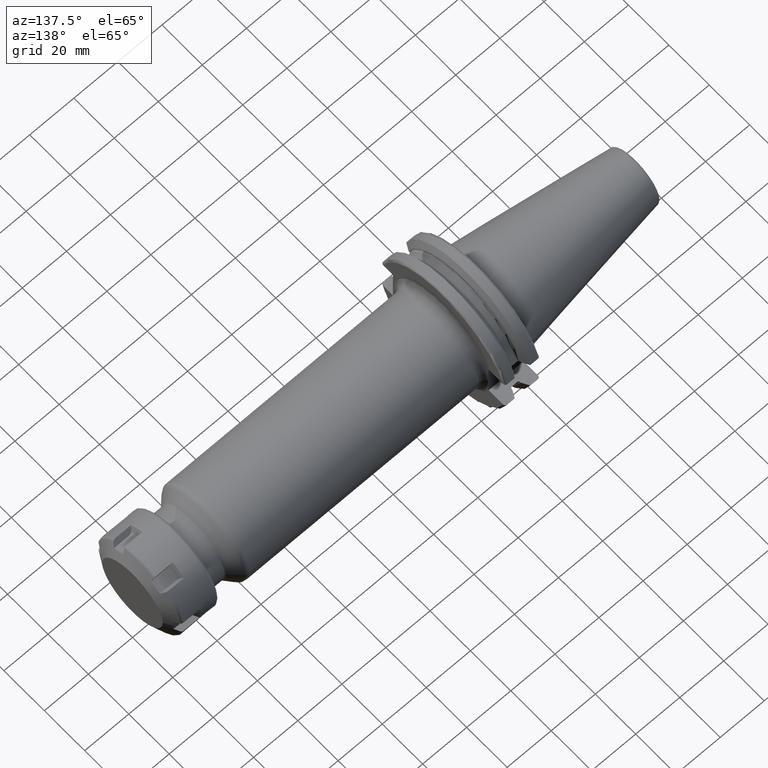
[diagram: clean part render]
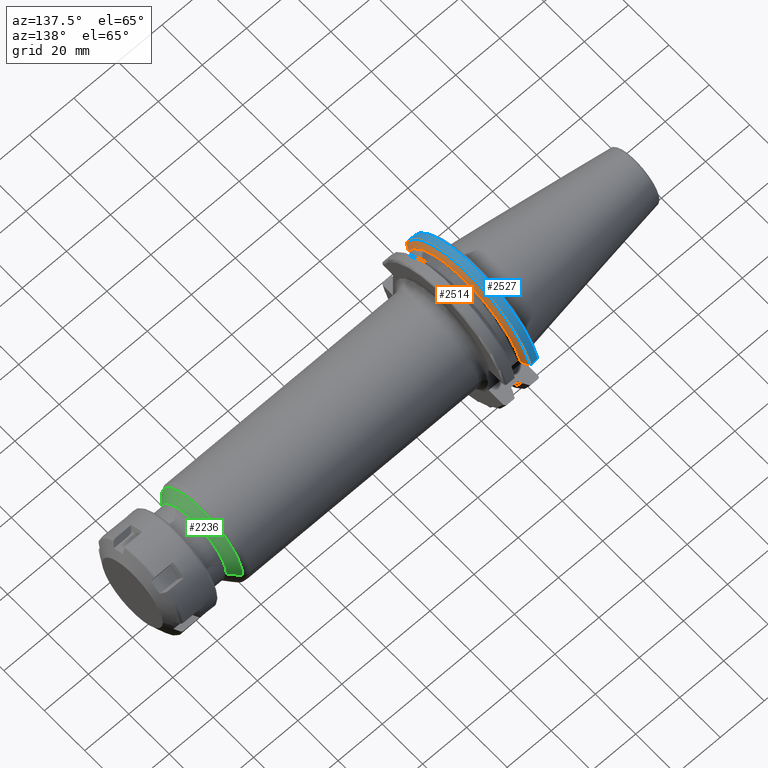
[diagram: same view with three faces highlighted in distinct colors, each labeled with its STEP entity id]
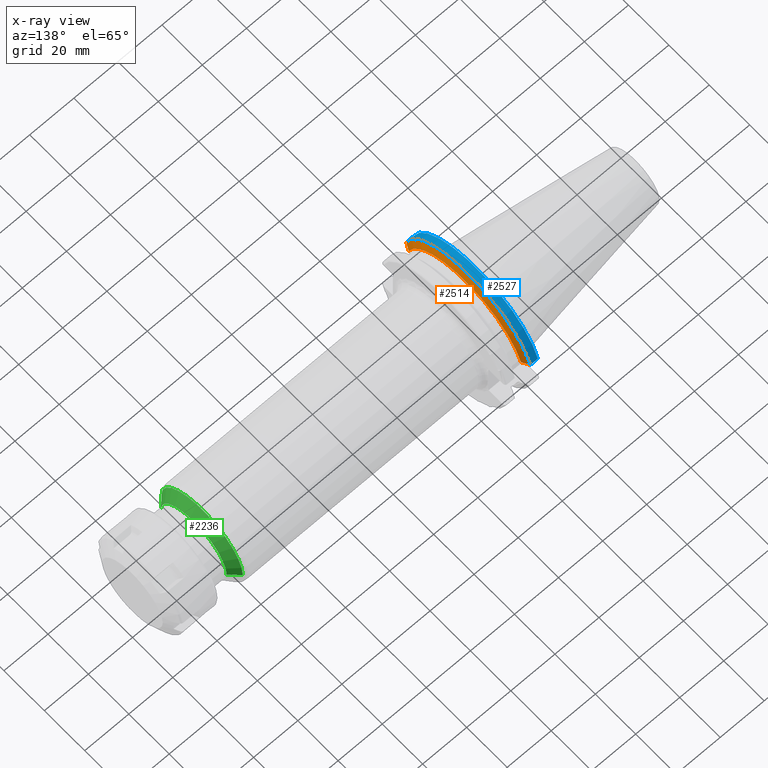
[diagram: x-ray of the same camera — body ghosted, the three highlighted faces saturated]
A machine part, auxiliary view with three faces highlighted in distinct colors.
The next image is the same camera in x-ray (body ghosted, the three faces saturated) — at least one of them is partly hidden behind the body in this view.
Their STEP definitions:

[orange] entity #2514 — the highlighted conical surface has half-angle 60 deg.
#711=CARTESIAN_POINT('',(9.2625E0,0.E0,0.E0));
#712=DIRECTION('',(1.E0,0.E0,0.E0));
#713=DIRECTION('',(0.E0,9.600957415706E-1,2.796715341576E-1));
#714=AXIS2_PLACEMENT_3D('',#711,#712,#713);
#809=CARTESIAN_POINT('',(7.645946479578E0,3.071231684927E1,8.1E0));
#810=CARTESIAN_POINT('',(7.831754864835E0,3.037948258059E1,8.1E0));
#811=CARTESIAN_POINT('',(8.199252814970E0,2.972048825911E1,8.1E0));
#812=CARTESIAN_POINT('',(8.738047920141E0,2.875212438619E1,8.1E0));
#813=CARTESIAN_POINT('',(9.089058006747E0,2.811971443922E1,8.1E0));
#814=CARTESIAN_POINT('',(9.2625E0,2.780681820245E1,8.1E0));
#816=CARTESIAN_POINT('',(9.2625E0,-2.780681820245E1,8.1E0));
#817=CARTESIAN_POINT('',(9.089138247115E0,-2.811956968242E1,8.1E0));
#818=CARTESIAN_POINT('',(8.738235514848E0,-2.875178670793E1,8.1E0));
#819=CARTESIAN_POINT('',(8.199445066245E0,-2.972014324708E1,8.1E0));
#820=CARTESIAN_POINT('',(7.831837395590E0,-3.037933474515E1,8.1E0));
#821=CARTESIAN_POINT('',(7.645946479578E0,-3.071231684927E1,8.1E0));
#827=CARTESIAN_POINT('',(7.645946479578E0,0.E0,0.E0));
#828=DIRECTION('',(1.E0,0.E0,0.E0));
#829=DIRECTION('',(0.E0,9.669363825036E-1,2.550177095632E-1));
#830=AXIS2_PLACEMENT_3D('',#827,#828,#829);
#1360=CARTESIAN_POINT('',(9.2625E0,2.780681820245E1,8.1E0));
#1362=VERTEX_POINT('',#1360);
#1372=CARTESIAN_POINT('',(9.2625E0,-2.780681820245E1,8.1E0));
#1374=VERTEX_POINT('',#1372);
#1414=VERTEX_POINT('',#809);
#1415=VERTEX_POINT('',#821);
#2502=CARTESIAN_POINT('',(8.454223239789E0,0.E0,0.E0));
#2503=DIRECTION('',(-1.E0,0.E0,0.E0));
#2504=DIRECTION('',(0.E0,1.E0,0.E0));
#2505=AXIS2_PLACEMENT_3D('',#2502,#2503,#2504);
#2506=CONICAL_SURFACE('',#2505,3.036252358474E1,6.E1);
#2507=ORIENTED_EDGE('',*,*,#2127,.T.);
#2508=ORIENTED_EDGE('',*,*,#2430,.T.);
#2509=ORIENTED_EDGE('',*,*,#2416,.T.);
#2511=ORIENTED_EDGE('',*,*,#2510,.F.);
#2512=EDGE_LOOP('',(#2507,#2508,#2509,#2511));
#2513=FACE_OUTER_BOUND('',#2512,.F.);
#2514=ADVANCED_FACE('',(#2513),#2506,.T.);
#715=CIRCLE('',#714,2.896254716948E1);
#815=B_SPLINE_CURVE_WITH_KNOTS('',3,(#809,#810,#811,#812,#813,#814),
.UNSPECIFIED.,.F.,.F.,(4,1,1,4),(0.E0,3.333333333333E-1,6.666666666667E-1,1.E0),
.UNSPECIFIED.);
#822=B_SPLINE_CURVE_WITH_KNOTS('',3,(#816,#817,#818,#819,#820,#821),
.UNSPECIFIED.,.F.,.F.,(4,1,1,4),(0.E0,3.333333333333E-1,6.666666666667E-1,1.E0),
.UNSPECIFIED.);
#831=CIRCLE('',#830,3.17625E1);
#2127=EDGE_CURVE('',#1414,#1362,#815,.T.);
#2416=EDGE_CURVE('',#1374,#1415,#822,.T.);
#2430=EDGE_CURVE('',#1362,#1374,#715,.T.);
#2510=EDGE_CURVE('',#1414,#1415,#831,.T.);

[blue] entity #2527 — the highlighted cylindrical surface (partial cylindrical patch) has radius 31.7625 mm, axis along (1, 0, 0).
#809=CARTESIAN_POINT('',(7.645946479578E0,3.071231684927E1,8.1E0));
#821=CARTESIAN_POINT('',(7.645946479578E0,-3.071231684927E1,8.1E0));
#823=DIRECTION('',(1.E0,0.E0,0.E0));
#824=VECTOR('',#823,3.445946479578E0);
#825=CARTESIAN_POINT('',(4.2E0,3.071231684927E1,8.1E0));
#826=LINE('',#825,#824);
#827=CARTESIAN_POINT('',(7.645946479578E0,0.E0,0.E0));
#828=DIRECTION('',(1.E0,0.E0,0.E0));
#829=DIRECTION('',(0.E0,9.669363825036E-1,2.550177095632E-1));
#830=AXIS2_PLACEMENT_3D('',#827,#828,#829);
#832=DIRECTION('',(1.E0,0.E0,0.E0));
#833=VECTOR('',#832,3.445946479578E0);
#834=CARTESIAN_POINT('',(4.2E0,-3.071231684927E1,8.1E0));
#835=LINE('',#834,#833);
#865=CARTESIAN_POINT('',(4.2E0,0.E0,0.E0));
#866=DIRECTION('',(1.E0,0.E0,0.E0));
#867=DIRECTION('',(0.E0,9.669363825036E-1,2.550177095632E-1));
#868=AXIS2_PLACEMENT_3D('',#865,#866,#867);
#1414=VERTEX_POINT('',#809);
#1415=VERTEX_POINT('',#821);
#1434=CARTESIAN_POINT('',(4.2E0,3.071231684927E1,8.1E0));
#1435=VERTEX_POINT('',#1434);
#1438=CARTESIAN_POINT('',(4.2E0,-3.071231684927E1,8.1E0));
#1439=VERTEX_POINT('',#1438);
#2515=CARTESIAN_POINT('',(-7.2615E1,0.E0,0.E0));
#2516=DIRECTION('',(1.E0,0.E0,0.E0));
#2517=DIRECTION('',(0.E0,-1.E0,0.E0));
#2518=AXIS2_PLACEMENT_3D('',#2515,#2516,#2517);
#2519=CYLINDRICAL_SURFACE('',#2518,3.17625E1);
#2520=ORIENTED_EDGE('',*,*,#2129,.T.);
#2521=ORIENTED_EDGE('',*,*,#2510,.T.);
#2522=ORIENTED_EDGE('',*,*,#2414,.F.);
#2524=ORIENTED_EDGE('',*,*,#2523,.F.);
#2525=EDGE_LOOP('',(#2520,#2521,#2522,#2524));
#2526=FACE_OUTER_BOUND('',#2525,.F.);
#2527=ADVANCED_FACE('',(#2526),#2519,.T.);
#831=CIRCLE('',#830,3.17625E1);
#869=CIRCLE('',#868,3.17625E1);
#2129=EDGE_CURVE('',#1435,#1414,#826,.T.);
#2414=EDGE_CURVE('',#1439,#1415,#835,.T.);
#2510=EDGE_CURVE('',#1414,#1415,#831,.T.);
#2523=EDGE_CURVE('',#1435,#1439,#869,.T.);

[green] entity #2236 — the highlighted conical surface has half-angle 45 deg.
#565=DIRECTION('',(-7.071067811865E-1,-7.071067811865E-1,-2.817150241686E-12));
#566=VECTOR('',#565,5.414213562372E0);
#567=CARTESIAN_POINT('',(1.322071067812E2,-1.629289321881E1,
8.982698945550E-13));
#568=LINE('',#567,#566);
#574=DIRECTION('',(-7.071067811865E-1,7.071067811865E-1,2.816857806715E-12));
#575=VECTOR('',#574,5.414213562372E0);
#576=CARTESIAN_POINT('',(1.322071067812E2,1.629289321881E1,
-8.988728039517E-13));
#577=LINE('',#576,#575);
#578=CARTESIAN_POINT('',(1.283786796564E2,0.E0,0.E0));
#579=DIRECTION('',(-1.E0,0.E0,0.E0));
#580=DIRECTION('',(0.E0,-1.E0,0.E0));
#581=AXIS2_PLACEMENT_3D('',#578,#579,#580);
#583=CARTESIAN_POINT('',(1.322071067812E2,0.E0,0.E0));
#584=DIRECTION('',(1.E0,0.E0,0.E0));
#585=DIRECTION('',(0.E0,1.E0,0.E0));
#586=AXIS2_PLACEMENT_3D('',#583,#584,#585);
#1515=CARTESIAN_POINT('',(1.283786796564E2,2.012132034356E1,0.E0));
#1516=CARTESIAN_POINT('',(1.283786796564E2,-2.012132034356E1,0.E0));
#1517=VERTEX_POINT('',#1515);
#1518=VERTEX_POINT('',#1516);
#1535=CARTESIAN_POINT('',(1.322071067812E2,-1.629289321881E1,0.E0));
#1536=CARTESIAN_POINT('',(1.322071067812E2,1.629289321881E1,0.E0));
#1537=VERTEX_POINT('',#1535);
#1538=VERTEX_POINT('',#1536);
#2224=CARTESIAN_POINT('',(1.302928932188E2,0.E0,0.E0));
#2225=DIRECTION('',(-1.E0,0.E0,0.E0));
#2226=DIRECTION('',(0.E0,1.E0,0.E0));
#2227=AXIS2_PLACEMENT_3D('',#2224,#2225,#2226);
#2228=CONICAL_SURFACE('',#2227,1.820710678119E1,4.5E1);
#2229=ORIENTED_EDGE('',*,*,#2176,.T.);
#2230=ORIENTED_EDGE('',*,*,#2219,.F.);
#2232=ORIENTED_EDGE('',*,*,#2231,.T.);
#2233=ORIENTED_EDGE('',*,*,#2215,.T.);
#2234=EDGE_LOOP('',(#2229,#2230,#2232,#2233));
#2235=FACE_OUTER_BOUND('',#2234,.F.);
#2236=ADVANCED_FACE('',(#2235),#2228,.T.);
#582=CIRCLE('',#581,2.012132034356E1);
#587=CIRCLE('',#586,1.629289321881E1);
#2176=EDGE_CURVE('',#1518,#1517,#582,.T.);
#2215=EDGE_CURVE('',#1537,#1518,#568,.T.);
#2219=EDGE_CURVE('',#1538,#1517,#577,.T.);
#2231=EDGE_CURVE('',#1538,#1537,#587,.T.);